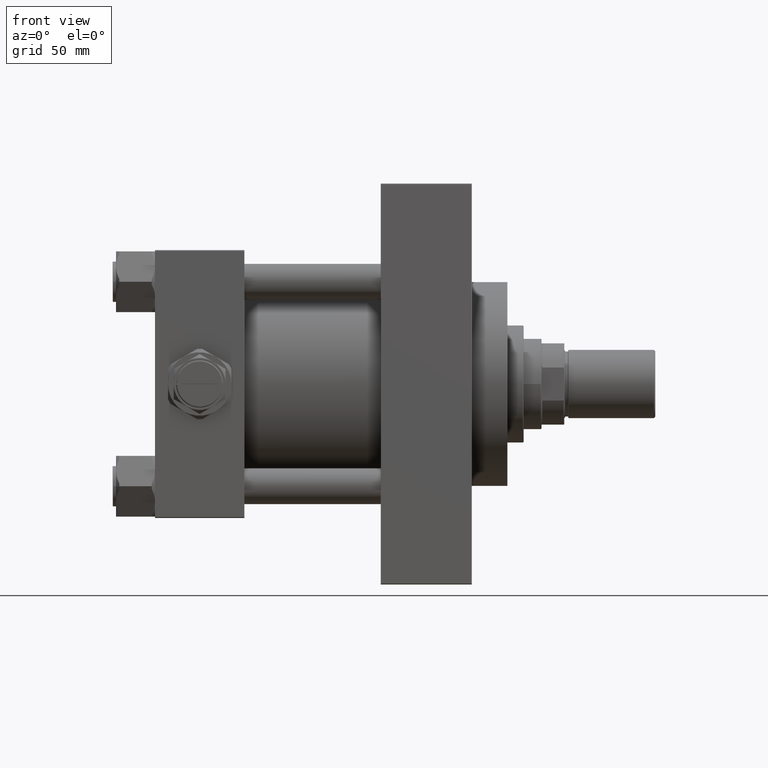
[diagram: clean part render]
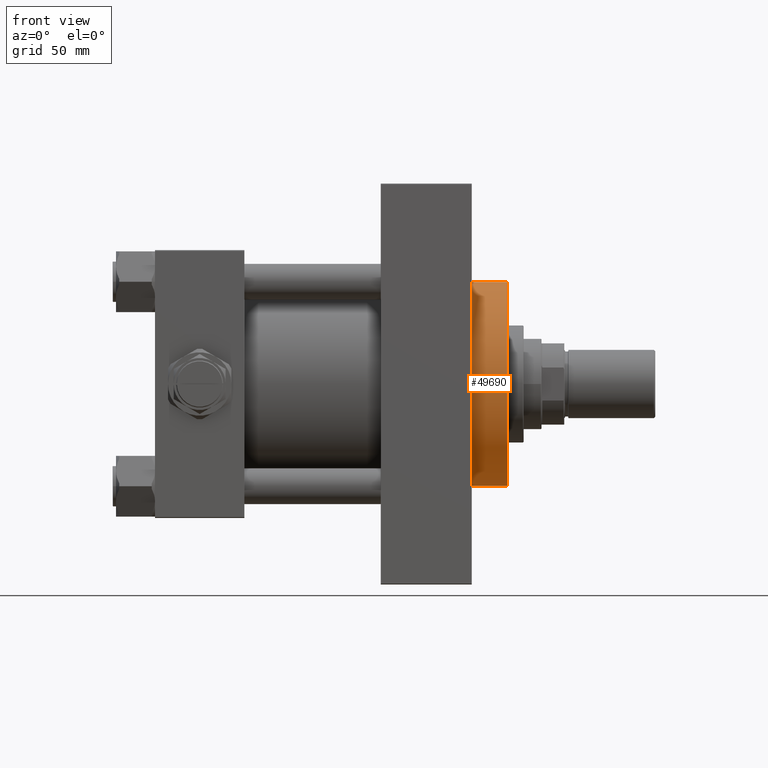
[diagram: same view with one face highlighted and labeled with its STEP entity id]
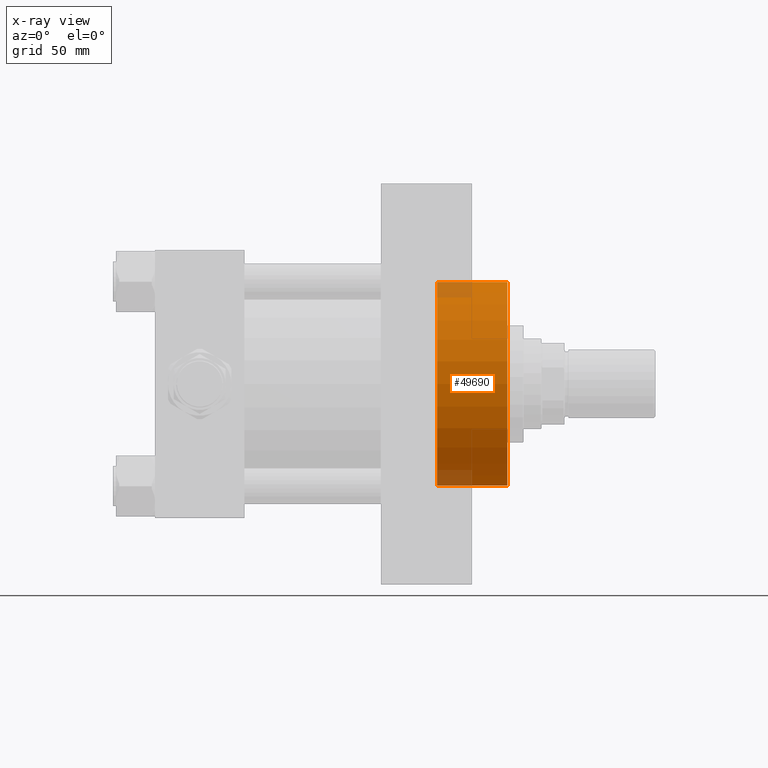
[diagram: x-ray of the same camera — body ghosted, the highlighted face saturated]
A machine part, front view. The second image highlights one B-rep face of the part: STEP entity #49690.
The next image is the same camera in x-ray: the body ghosted, the highlighted face saturated — about 8% of this face is hidden behind the body in this view.
In plain terms, the highlighted cylindrical surface (partial cylindrical patch) has radius 62.75 mm, axis along (-1, 0, 0).
Its self-contained STEP definition (entity closure, byte-faithful):
#858 = CIRCLE ( 'NONE', #23467, 62.75000000000000000 ) ;
#1839 = AXIS2_PLACEMENT_3D ( 'NONE', #12479, #8437, #31686 ) ;
#7310 = EDGE_CURVE ( 'NONE', #46398, #31327, #858, .T. ) ;
#7482 = DIRECTION ( 'NONE',  ( -0.000000000000000000, -0.000000000000000000, -1.000000000000000000 ) ) ;
#8437 = DIRECTION ( 'NONE',  ( 0.000000000000000000, 0.000000000000000000, 1.000000000000000000 ) ) ;
#9072 = FACE_OUTER_BOUND ( 'NONE', #15847, .T. ) ;
#9484 = ORIENTED_EDGE ( 'NONE', *, *, #49024, .F. ) ;
#9790 = VERTEX_POINT ( 'NONE', #20050 ) ;
#10836 = DIRECTION ( 'NONE',  ( 1.000000000000000000, 0.000000000000000000, 0.000000000000000000 ) ) ;
#12100 = VECTOR ( 'NONE', #7482, 1000.000000000000000 ) ;
#12479 = CARTESIAN_POINT ( 'NONE',  ( 0.000000000000000000, 0.000000000000000000, 43.25999999999999801 ) ) ;
#13352 = DIRECTION ( 'NONE',  ( -0.000000000000000000, -0.000000000000000000, -1.000000000000000000 ) ) ;
#15847 = EDGE_LOOP ( 'NONE', ( #9484, #18120, #33001, #26499 ) ) ;
#16883 = CYLINDRICAL_SURFACE ( 'NONE', #28880, 62.75000000000000000 ) ;
#18120 = ORIENTED_EDGE ( 'NONE', *, *, #23758, .T. ) ;
#19088 = LINE ( 'NONE', #23389, #12100 ) ;
#19277 = LINE ( 'NONE', #30925, #20530 ) ;
#20050 = CARTESIAN_POINT ( 'NONE',  ( 62.75000000000000000, 7.684658664649641591E-15, 43.25999999999999801 ) ) ;
#20530 = VECTOR ( 'NONE', #47313, 1000.000000000000000 ) ;
#21972 = VERTEX_POINT ( 'NONE', #36065 ) ;
#23196 = CARTESIAN_POINT ( 'NONE',  ( 0.000000000000000000, 0.000000000000000000, 0.000000000000000000 ) ) ;
#23240 = EDGE_CURVE ( 'NONE', #21972, #31327, #19088, .T. ) ;
#23389 = CARTESIAN_POINT ( 'NONE',  ( -62.75000000000000000, 0.000000000000000000, 43.25999999999999801 ) ) ;
#23467 = AXIS2_PLACEMENT_3D ( 'NONE', #23196, #30052, #10836 ) ;
#23758 = EDGE_CURVE ( 'NONE', #9790, #46398, #19277, .T. ) ;
#23844 = CARTESIAN_POINT ( 'NONE',  ( -62.75000000000000000, 0.000000000000000000, 0.000000000000000000 ) ) ;
#24480 = CARTESIAN_POINT ( 'NONE',  ( 0.000000000000000000, 0.000000000000000000, 43.25999999999999801 ) ) ;
#25059 = CARTESIAN_POINT ( 'NONE',  ( 62.75000000000000000, 7.684658664649641591E-15, 0.000000000000000000 ) ) ;
#26499 = ORIENTED_EDGE ( 'NONE', *, *, #23240, .F. ) ;
#28880 = AXIS2_PLACEMENT_3D ( 'NONE', #24480, #13352, #29020 ) ;
#29020 = DIRECTION ( 'NONE',  ( -1.000000000000000000, 0.000000000000000000, 0.000000000000000000 ) ) ;
#30052 = DIRECTION ( 'NONE',  ( 0.000000000000000000, 0.000000000000000000, 1.000000000000000000 ) ) ;
#30925 = CARTESIAN_POINT ( 'NONE',  ( 62.75000000000000000, 7.684658664649641591E-15, 43.25999999999999801 ) ) ;
#31327 = VERTEX_POINT ( 'NONE', #23844 ) ;
#31686 = DIRECTION ( 'NONE',  ( 1.000000000000000000, 0.000000000000000000, 0.000000000000000000 ) ) ;
#31714 = CIRCLE ( 'NONE', #1839, 62.75000000000000000 ) ;
#33001 = ORIENTED_EDGE ( 'NONE', *, *, #7310, .T. ) ;
#36065 = CARTESIAN_POINT ( 'NONE',  ( -62.75000000000000000, 0.000000000000000000, 43.25999999999999801 ) ) ;
#46398 = VERTEX_POINT ( 'NONE', #25059 ) ;
#47313 = DIRECTION ( 'NONE',  ( -0.000000000000000000, -0.000000000000000000, -1.000000000000000000 ) ) ;
#49024 = EDGE_CURVE ( 'NONE', #9790, #21972, #31714, .T. ) ;
#49690 = ADVANCED_FACE ( 'NONE', ( #9072 ), #16883, .T. ) ;